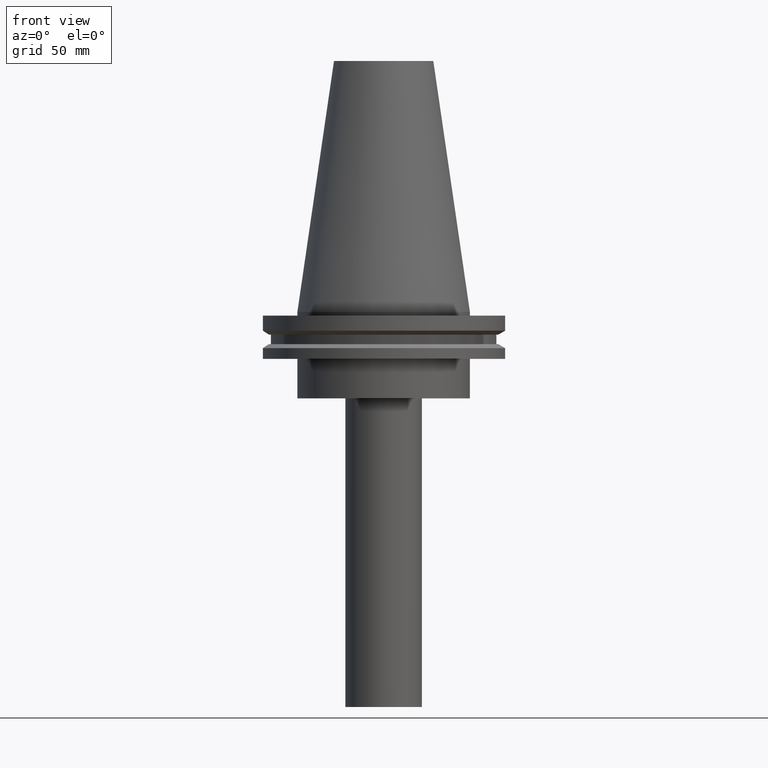
[diagram: clean part render]
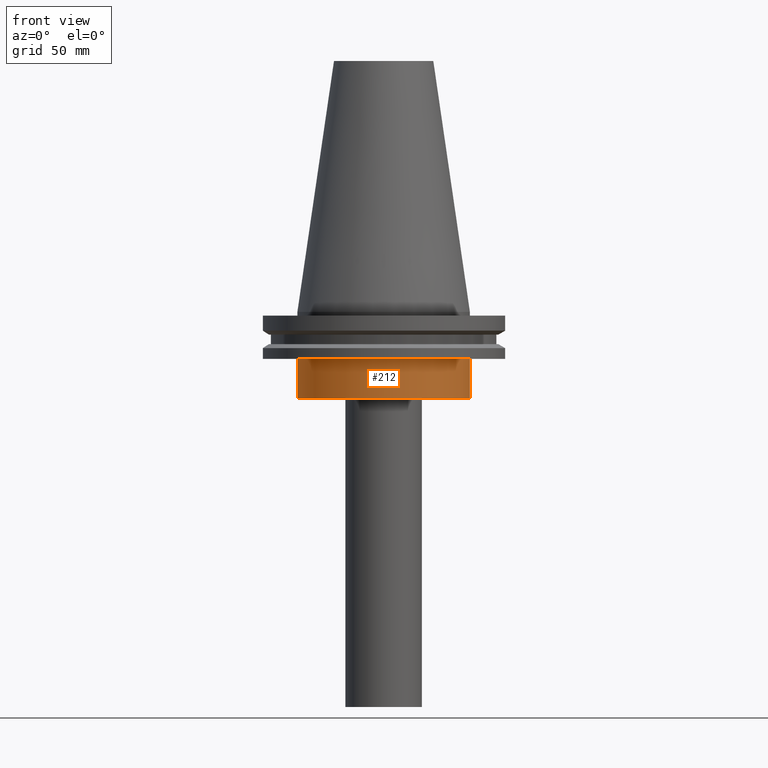
[diagram: same view with one face highlighted and labeled with its STEP entity id]
A machine part, front view. The second image highlights one B-rep face of the part: STEP entity #212.
In plain terms, the highlighted cylindrical surface (bore or boss wall) has radius 34.925 mm, axis along (-0, -0, 1).
Its self-contained STEP definition (entity closure, byte-faithful):
#8 = VERTEX_POINT ( 'NONE', #249 ) ;
#46 = DIRECTION ( 'NONE',  ( -0.000000000000000000, -0.000000000000000000, 1.000000000000000000 ) ) ;
#47 = DIRECTION ( 'NONE',  ( 1.000000000000000000, 0.000000000000000000, 0.000000000000000000 ) ) ;
#55 = CIRCLE ( 'NONE', #281, 34.92499999999999716 ) ;
#116 = AXIS2_PLACEMENT_3D ( 'NONE', #329, #46, #295 ) ;
#143 = FACE_OUTER_BOUND ( 'NONE', #179, .T. ) ;
#155 = ORIENTED_EDGE ( 'NONE', *, *, #261, .F. ) ;
#156 = VERTEX_POINT ( 'NONE', #374 ) ;
#168 = FACE_OUTER_BOUND ( 'NONE', #337, .T. ) ;
#179 = EDGE_LOOP ( 'NONE', ( #155 ) ) ;
#209 = ORIENTED_EDGE ( 'NONE', *, *, #273, .T. ) ;
#212 = ADVANCED_FACE ( 'NONE', ( #143, #168 ), #255, .T. ) ;
#226 = DIRECTION ( 'NONE',  ( -0.000000000000000000, -0.000000000000000000, 1.000000000000000000 ) ) ;
#249 = CARTESIAN_POINT ( 'NONE',  ( 34.92499999999999716, 0.000000000000000000, -19.04999999999999716 ) ) ;
#255 = CYLINDRICAL_SURFACE ( 'NONE', #362, 34.92499999999999716 ) ;
#256 = DIRECTION ( 'NONE',  ( 1.000000000000000000, 0.000000000000000000, 0.000000000000000000 ) ) ;
#261 = EDGE_CURVE ( 'NONE', #8, #8, #290, .T. ) ;
#262 = CARTESIAN_POINT ( 'NONE',  ( 0.000000000000000000, 0.000000000000000000, 101.5999999999999943 ) ) ;
#273 = EDGE_CURVE ( 'NONE', #156, #156, #55, .T. ) ;
#281 = AXIS2_PLACEMENT_3D ( 'NONE', #358, #330, #47 ) ;
#290 = CIRCLE ( 'NONE', #116, 34.92499999999999716 ) ;
#295 = DIRECTION ( 'NONE',  ( 1.000000000000000000, 0.000000000000000000, 0.000000000000000000 ) ) ;
#329 = CARTESIAN_POINT ( 'NONE',  ( 0.000000000000000000, 0.000000000000000000, -19.04999999999999716 ) ) ;
#330 = DIRECTION ( 'NONE',  ( -0.000000000000000000, -0.000000000000000000, 1.000000000000000000 ) ) ;
#337 = EDGE_LOOP ( 'NONE', ( #209 ) ) ;
#358 = CARTESIAN_POINT ( 'NONE',  ( 0.000000000000000000, 0.000000000000000000, -35.00000000000000000 ) ) ;
#362 = AXIS2_PLACEMENT_3D ( 'NONE', #262, #226, #256 ) ;
#374 = CARTESIAN_POINT ( 'NONE',  ( 34.92499999999999716, 0.000000000000000000, -35.00000000000000000 ) ) ;